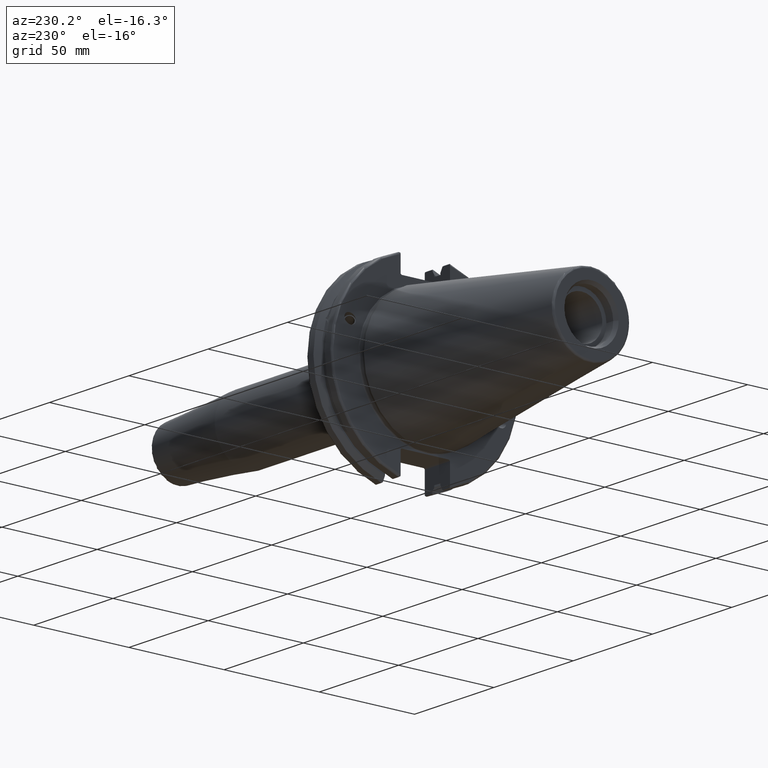
[diagram: clean part render]
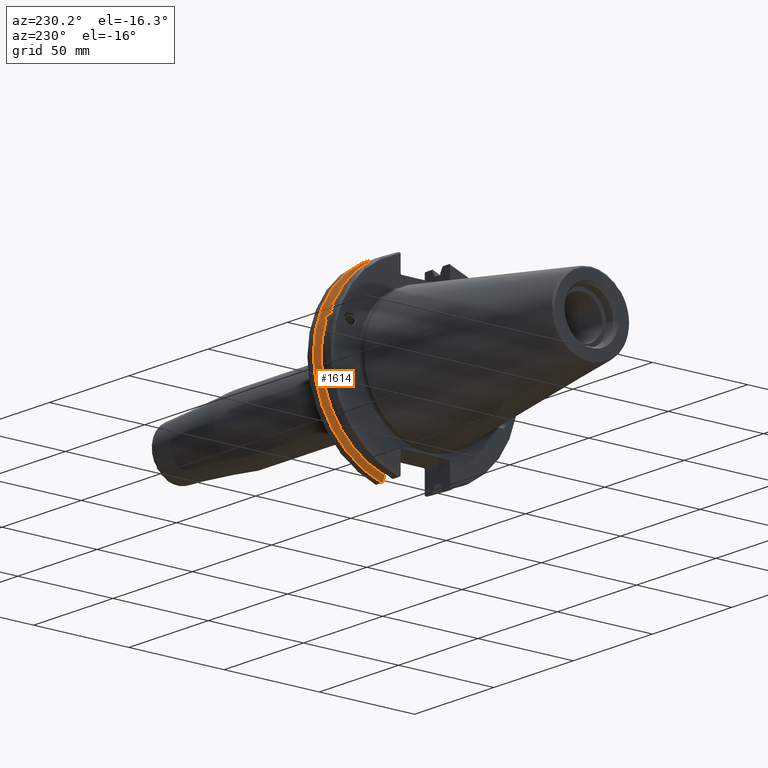
[diagram: same view with one face highlighted and labeled with its STEP entity id]
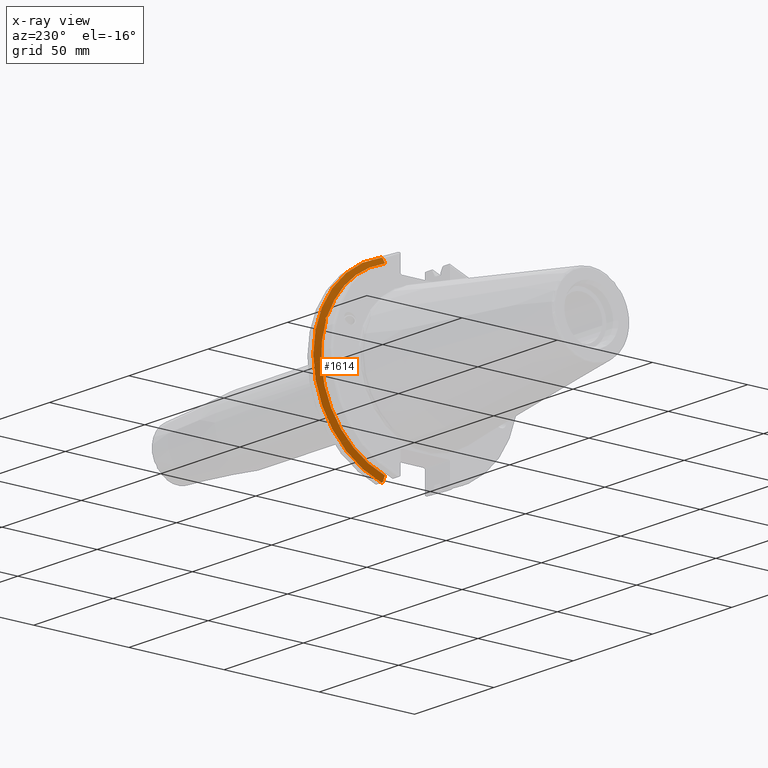
[diagram: x-ray of the same camera — body ghosted, the highlighted face saturated]
A machine part, auxiliary view. The second image highlights one B-rep face of the part: STEP entity #1614.
The next image is the same camera in x-ray: the body ghosted, the highlighted face saturated — about 0% of this face is hidden behind the body in this view.
In plain terms, the highlighted conical surface has half-angle 60 deg.
Its self-contained STEP definition (entity closure, byte-faithful):
#23=(
BOUNDED_CURVE()
B_SPLINE_CURVE(2,(#2998,#2999,#3000),.UNSPECIFIED.,.F.,.F.)
B_SPLINE_CURVE_WITH_KNOTS((3,3),(0.325260944932521,0.390084992222202),
 .UNSPECIFIED.)
CURVE()
GEOMETRIC_REPRESENTATION_ITEM()
RATIONAL_B_SPLINE_CURVE((1.00019140645994,1.00011477674864,1.))
REPRESENTATION_ITEM('')
);
#24=(
BOUNDED_CURVE()
B_SPLINE_CURVE(2,(#3012,#3013,#3014),.UNSPECIFIED.,.F.,.F.)
B_SPLINE_CURVE_WITH_KNOTS((3,3),(0.0558332664532001,0.331657177124504),
 .UNSPECIFIED.)
CURVE()
GEOMETRIC_REPRESENTATION_ITEM()
RATIONAL_B_SPLINE_CURVE((1.00012873636632,1.00038235574022,1.))
REPRESENTATION_ITEM('')
);
#29=(
BOUNDED_CURVE()
B_SPLINE_CURVE(2,(#3177,#3178,#3179),.UNSPECIFIED.,.F.,.F.)
B_SPLINE_CURVE_WITH_KNOTS((3,3),(0.,0.275823910671402),.UNSPECIFIED.)
CURVE()
GEOMETRIC_REPRESENTATION_ITEM()
RATIONAL_B_SPLINE_CURVE((1.,1.00038235574129,1.00012873636668))
REPRESENTATION_ITEM('')
);
#30=(
BOUNDED_CURVE()
B_SPLINE_CURVE(2,(#3194,#3195,#3196),.UNSPECIFIED.,.F.,.F.)
B_SPLINE_CURVE_WITH_KNOTS((3,3),(0.,0.0648240472897064),.UNSPECIFIED.)
CURVE()
GEOMETRIC_REPRESENTATION_ITEM()
RATIONAL_B_SPLINE_CURVE((1.,1.00011477674844,1.00019140645961))
REPRESENTATION_ITEM('')
);
#48=B_SPLINE_CURVE_WITH_KNOTS('',3,(#2794,#2795,#2796,#2797,#2798,#2799,
#2800,#2801),.UNSPECIFIED.,.F.,.F.,(4,2,2,4),(0.426712868358719,0.441644498666905,
0.480313313223129,0.518982127779353),.UNSPECIFIED.);
#52=B_SPLINE_CURVE_WITH_KNOTS('',3,(#2856,#2857,#2858,#2859,#2860,#2861,
#2862,#2863),.UNSPECIFIED.,.F.,.F.,(4,2,2,4),(0.518982127779353,0.557650942335576,
0.5963197568918,0.611251387199989),.UNSPECIFIED.);
#81=CONICAL_SURFACE('',#1805,47.8172386482472,1.0471975511966);
#453=FACE_OUTER_BOUND('',#565,.T.);
#565=EDGE_LOOP('',(#1466,#1467,#1468,#1469,#1470,#1471,#1472,#1473,#1474));
#625=CIRCLE('',#1738,46.4219772964944);
#649=CIRCLE('',#1798,49.2125);
#652=CIRCLE('',#1806,46.4219772964944);
#737=VERTEX_POINT('',#2791);
#738=VERTEX_POINT('',#2793);
#745=VERTEX_POINT('',#2854);
#754=VERTEX_POINT('',#2896);
#782=VERTEX_POINT('',#2995);
#783=VERTEX_POINT('',#2997);
#808=VERTEX_POINT('',#3174);
#809=VERTEX_POINT('',#3176);
#812=VERTEX_POINT('',#3192);
#921=EDGE_CURVE('',#738,#737,#48,.T.);
#929=EDGE_CURVE('',#737,#745,#52,.T.);
#941=EDGE_CURVE('',#754,#738,#625,.T.);
#978=EDGE_CURVE('',#782,#783,#23,.T.);
#983=EDGE_CURVE('',#782,#754,#24,.T.);
#1028=EDGE_CURVE('',#809,#808,#29,.T.);
#1036=EDGE_CURVE('',#812,#808,#30,.T.);
#1037=EDGE_CURVE('',#783,#812,#649,.T.);
#1043=EDGE_CURVE('',#745,#809,#652,.T.);
#1466=ORIENTED_EDGE('',*,*,#921,.T.);
#1467=ORIENTED_EDGE('',*,*,#929,.T.);
#1468=ORIENTED_EDGE('',*,*,#1043,.T.);
#1469=ORIENTED_EDGE('',*,*,#1028,.T.);
#1470=ORIENTED_EDGE('',*,*,#1036,.F.);
#1471=ORIENTED_EDGE('',*,*,#1037,.F.);
#1472=ORIENTED_EDGE('',*,*,#978,.F.);
#1473=ORIENTED_EDGE('',*,*,#983,.T.);
#1474=ORIENTED_EDGE('',*,*,#941,.T.);
#1614=ADVANCED_FACE('',(#453),#81,.T.);
#1738=AXIS2_PLACEMENT_3D('',#2897,#2049,#2050);
#1798=AXIS2_PLACEMENT_3D('',#3198,#2216,#2217);
#1805=AXIS2_PLACEMENT_3D('',#3211,#2233,#2234);
#1806=AXIS2_PLACEMENT_3D('',#3212,#2235,#2236);
#2049=DIRECTION('center_axis',(1.,0.,0.));
#2050=DIRECTION('ref_axis',(0.,0.,-1.));
#2216=DIRECTION('center_axis',(1.,0.,0.));
#2217=DIRECTION('ref_axis',(0.,0.,-1.));
#2233=DIRECTION('center_axis',(1.,0.,0.));
#2234=DIRECTION('ref_axis',(0.,1.,0.));
#2235=DIRECTION('center_axis',(1.,0.,0.));
#2236=DIRECTION('ref_axis',(0.,0.,-1.));
#2791=CARTESIAN_POINT('',(13.2341,43.923494649906,15.9868446375166));
#2793=CARTESIAN_POINT('',(13.0491,43.9096390749305,15.0646464421033));
#2794=CARTESIAN_POINT('Ctrl Pts',(13.0491,43.9096390749305,15.0646464421033));
#2795=CARTESIAN_POINT('Ctrl Pts',(13.0660815609661,43.9250360001461,15.1104047527575));
#2796=CARTESIAN_POINT('Ctrl Pts',(13.0821132459668,43.9385582852181,15.1564111356409));
#2797=CARTESIAN_POINT('Ctrl Pts',(13.1358132615496,43.9797830409459,15.3217566390709));
#2798=CARTESIAN_POINT('Ctrl Pts',(13.1719838933644,43.9989016655819,15.4570249042868));
#2799=CARTESIAN_POINT('Ctrl Pts',(13.2212913174802,43.9931221605126,15.7289849146254));
#2800=CARTESIAN_POINT('Ctrl Pts',(13.2341,43.9675796948952,15.8657219718732));
#2801=CARTESIAN_POINT('Ctrl Pts',(13.2341,43.923494649906,15.9868446375166));
#2854=CARTESIAN_POINT('',(13.0491,43.3201030900029,16.684383248648));
#2856=CARTESIAN_POINT('Ctrl Pts',(13.2341,43.923494649906,15.9868446375166));
#2857=CARTESIAN_POINT('Ctrl Pts',(13.2341,43.8794096049169,16.10796730316));
#2858=CARTESIAN_POINT('Ctrl Pts',(13.2212913174802,43.8110833825827,16.2291323464527));
#2859=CARTESIAN_POINT('Ctrl Pts',(13.1719838933644,43.6406982153492,16.441180795372));
#2860=CARTESIAN_POINT('Ctrl Pts',(13.1358132615496,43.5391037343221,16.5325130832406));
#2861=CARTESIAN_POINT('Ctrl Pts',(13.0821132459668,43.4012416983557,16.6326763251437));
#2862=CARTESIAN_POINT('Ctrl Pts',(13.0660815609661,43.3613106941341,16.6592273018006));
#2863=CARTESIAN_POINT('Ctrl Pts',(13.0491,43.3201030900029,16.684383248648));
#2896=CARTESIAN_POINT('',(13.0491,12.95,-44.5791147973605));
#2897=CARTESIAN_POINT('Origin',(13.0491,0.,0.));
#2995=CARTESIAN_POINT('',(14.3818103943757,12.95,-46.9780755322918));
#2997=CARTESIAN_POINT('',(14.6602090340487,13.4317035994433,-47.3440544806494));
#2998=CARTESIAN_POINT('Ctrl Pts',(14.3818103943757,12.95,-46.9780755322918));
#2999=CARTESIAN_POINT('Ctrl Pts',(14.5199310333617,13.1896660169965,-47.1601640966264));
#3000=CARTESIAN_POINT('Ctrl Pts',(14.6602090340487,13.4317035994433,-47.3440544806494));
#3012=CARTESIAN_POINT('Ctrl Pts',(14.3818103943757,12.95,-46.9780755322918));
#3013=CARTESIAN_POINT('Ctrl Pts',(13.6979955094851,12.95,-45.7494966802933));
#3014=CARTESIAN_POINT('Ctrl Pts',(13.0491,12.95,-44.5791147973604));
#3174=CARTESIAN_POINT('',(14.3818103943757,12.95,46.9780755322918));
#3176=CARTESIAN_POINT('',(13.0491,12.95,44.5791147973604));
#3177=CARTESIAN_POINT('Ctrl Pts',(13.0491,12.95,44.5791147973604));
#3178=CARTESIAN_POINT('Ctrl Pts',(13.6979955094846,12.95,45.7494966802924));
#3179=CARTESIAN_POINT('Ctrl Pts',(14.3818103943757,12.95,46.9780755322918));
#3192=CARTESIAN_POINT('',(14.6602090340487,13.4317035994433,47.3440544806494));
#3194=CARTESIAN_POINT('Ctrl Pts',(14.6602090340487,13.4317035994433,47.3440544806494));
#3195=CARTESIAN_POINT('Ctrl Pts',(14.5199310333618,13.1896660169966,47.1601640966264));
#3196=CARTESIAN_POINT('Ctrl Pts',(14.3818103943757,12.95,46.9780755322918));
#3198=CARTESIAN_POINT('Origin',(14.6602090340487,0.,0.));
#3211=CARTESIAN_POINT('Origin',(13.8546545170244,0.,0.));
#3212=CARTESIAN_POINT('Origin',(13.0491,0.,0.));